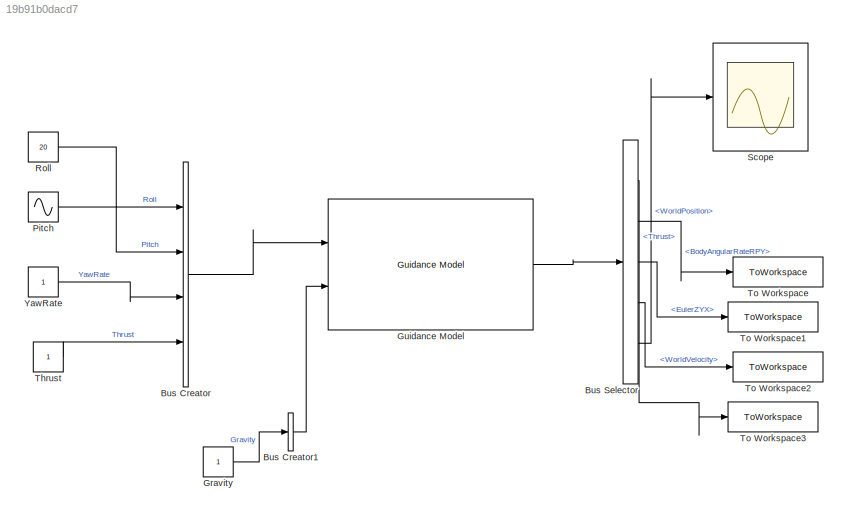
MODEL slx_19b91b0dacd7
KIND model
CONFIG AbsTol = auto
CONFIG EnableMultiTasking = off
CONFIG FixedStep = auto
CONFIG MaxStep = auto
CONFIG MinStep = auto
CONFIG RelTol = 1e-3
CONFIG SampleTimeConstraint = Unconstrained
CONFIG Solver = VariableStepAuto
CONFIG SolverName = VariableStepAuto
CONFIG StartTime = 0.0
CONFIG StopTime = 10.0
BLOCK [BusCreator] Bus Creator
  DisplayOption = bar
  InheritFromInputs = on
  Inputs = Roll,Pitch,YawRate,Thrust
  NonVirtualBus = on
  OutDataTypeStr = Bus: MultirotorGuidanceControlBus
  Ports = [4, 1]
BLOCK [BusCreator] Bus Creator1
  DisplayOption = bar
  InheritFromInputs = on
  Inputs = Gravity
  NonVirtualBus = on
  OutDataTypeStr = Bus: MultirotorGuidanceEnvironmentBus
  Ports = [1, 1]
BLOCK [BusSelector] Bus Selector
  OutputSignals = Thrust,BodyAngularRateRPY,EulerZYX,WorldVelocity,WorldPosition
  Ports = [1, 5]
BLOCK [Constant] Gravity
BLOCK [Reference] Guidance Model  REF=uavalgslib/Guidance Model
  Ports = [2, 1]
  SourceBlock = uavalgslib/Guidance Model
  SourceType = Guidance Model
BLOCK [Sin] Pitch
  Ports = [0, 1]
  SampleTime = 0
BLOCK [Constant] Roll
  Value = 20
BLOCK [Scope] Scope
  Floating = off
  NumInputPorts = 1
  Ports = [1]
  ScopeSpecificationString = Simulink.scopes.TimeScopeBlockCfg('CurrentConfiguration', extmgr.ConfigurationSet(extmgr.Configuration('Core','General UI',true),extmgr.Configuration('Core','Source UI',true),extmgr.Configuration('Sources','WiredSimulink',true),extmgr.Configuration('Visuals','Time Domain',true,'SerializedDisplays',{struct('MinYLimReal','-120.30123','MaxYLimReal','23.44407','YLabelReal','','MinYLimMag',' 0.00000','...<+1463ch>
BLOCK [Constant] Thrust
BLOCK [ToWorkspace] To Workspace
  Decimation = 4
  FixptAsFi = on
  MaxDataPoints = inf
  Ports = [1]
  SampleTime = -1
  SaveFormat = Timeseries
  VariableName = simout
BLOCK [ToWorkspace] To Workspace1
  FixptAsFi = on
  MaxDataPoints = inf
  Ports = [1]
  SampleTime = -1
  SaveFormat = Timeseries
  VariableName = simout1
BLOCK [ToWorkspace] To Workspace2
  FixptAsFi = on
  MaxDataPoints = inf
  Ports = [1]
  SampleTime = -1
  SaveFormat = Timeseries
  VariableName = simout2
BLOCK [ToWorkspace] To Workspace3
  FixptAsFi = on
  MaxDataPoints = inf
  Ports = [1]
  SampleTime = -1
  SaveFormat = Timeseries
  VariableName = simout3
BLOCK [Constant] YawRate
LINE Bus Creator1:1 -> Guidance Model:2
LINE Bus Creator:1 -> Guidance Model:1
LINE Bus Selector:1 -> To Workspace3:1
LINE Bus Selector:2 -> To Workspace:1
LINE Bus Selector:3 -> To Workspace1:1
LINE Bus Selector:4 -> To Workspace2:1
LINE Bus Selector:5 -> Scope:1
LINE Gravity:1 -> Bus Creator1:1
LINE Guidance Model:1 -> Bus Selector:1
LINE Pitch:1 -> Bus Creator:2
LINE Roll:1 -> Bus Creator:1
LINE Thrust:1 -> Bus Creator:4
LINE YawRate:1 -> Bus Creator:3
